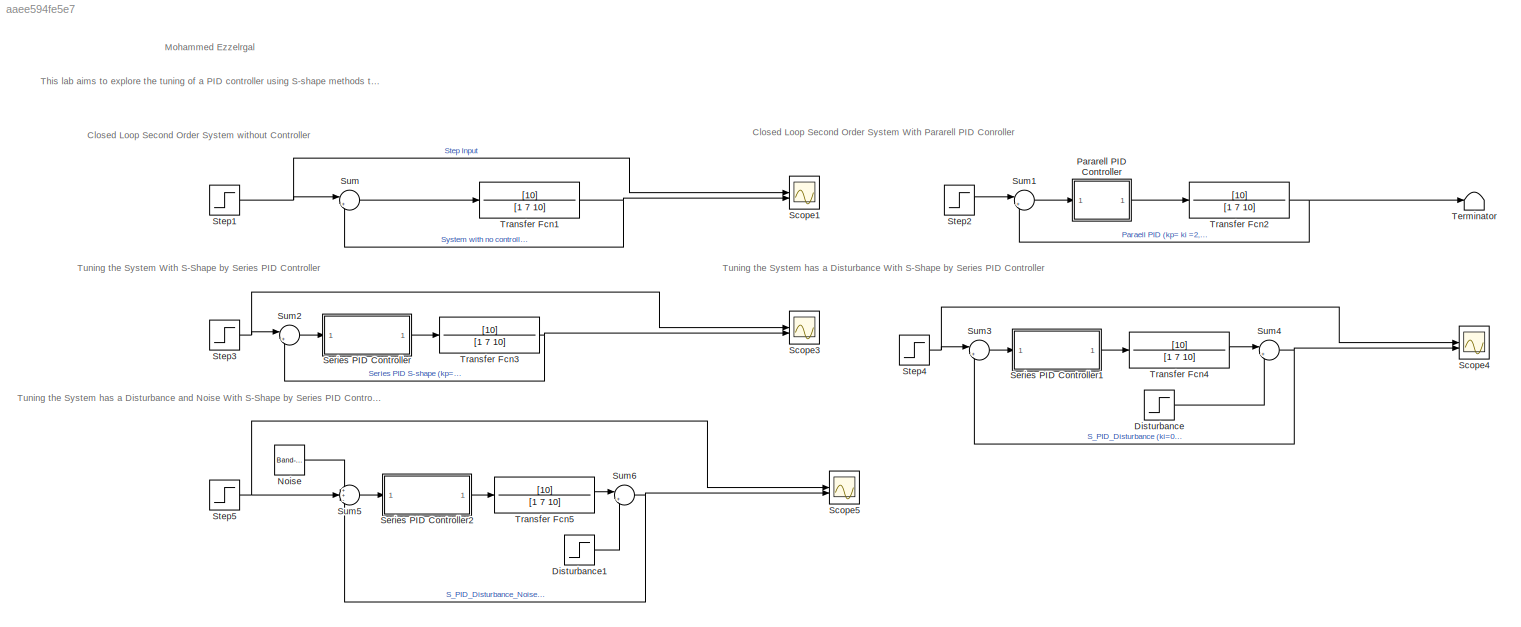
MODEL slx_aaee594fe5e7
KIND model
CONFIG AbsTol = auto
CONFIG EnableMultiTasking = off
CONFIG FixedStep = auto
CONFIG MaxStep = 0.001
CONFIG MinStep = auto
CONFIG RelTol = 1e-3
CONFIG SampleTimeConstraint = Unconstrained
CONFIG SolverName = VariableStepAuto
CONFIG StartTime = 0.0
CONFIG StopTime = 20
BLOCK [Step] Disturbance
  After = 0.5
  SampleTime = 0
  Time = 5
BLOCK [Step] Disturbance1
  After = 0.5
  SampleTime = 0
  Time = 20
BLOCK [Reference] Noise  REF=simulink/Sources/Band-Limited
White Noise
  SourceBlock = simulink/Sources/Band-Limited\nWhite Noise
  SourceType = Band-Limited White Noise.
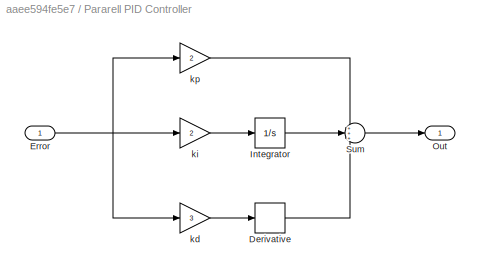
BLOCK [SubSystem] Pararell PID Controller
BLOCK [Derivative] Pararell PID Controller/Derivative
BLOCK [Inport] Pararell PID Controller/Error
BLOCK [Integrator] Pararell PID Controller/Integrator
BLOCK [Outport] Pararell PID Controller/Out
BLOCK [Sum] Pararell PID Controller/Sum
  Inputs = +++
BLOCK [Gain] Pararell PID Controller/kd
  Gain = 3
BLOCK [Gain] Pararell PID Controller/ki
  Gain = 2
BLOCK [Gain] Pararell PID Controller/kp
  Gain = 2
BLOCK [Scope] Scope1
  Floating = off
  NumInputPorts = 2
  ScopeSpecificationString = Simulink.scopes.TimeScopeBlockCfg('CurrentConfiguration', extmgr.ConfigurationSet(extmgr.Configuration('Core','General UI',true),extmgr.Configuration('Core','Source UI',true),extmgr.Configuration('Sources','WiredSimulink',true,'DataLoggingVariableName','ScopeData1'),extmgr.Configuration('Visuals','Time Domain',true,'SerializedDisplays',{struct('MinYLimReal','-0.125','MaxYLimReal','1.125','YLabelRe...<+1415ch>
BLOCK [Scope] Scope3
  Floating = off
  NumInputPorts = 2
  ScopeSpecificationString = Simulink.scopes.TimeScopeBlockCfg('CurrentConfiguration', extmgr.ConfigurationSet(extmgr.Configuration('Core','General UI',true),extmgr.Configuration('Core','Source UI',true),extmgr.Configuration('Sources','WiredSimulink',true,'DataLoggingVariableName','ScopeData3'),extmgr.Configuration('Visuals','Time Domain',true,'SerializedDisplays',{struct('MinYLimReal','-0.12609','MaxYLimReal','1.13477','YLab...<+1438ch>
BLOCK [Scope] Scope4
  Floating = off
  NumInputPorts = 2
  ScopeSpecificationString = Simulink.scopes.TimeScopeBlockCfg('CurrentConfiguration', extmgr.ConfigurationSet(extmgr.Configuration('Core','General UI',true),extmgr.Configuration('Core','Source UI',true),extmgr.Configuration('Sources','WiredSimulink',true,'DataLoggingVariableName','ScopeData4'),extmgr.Configuration('Visuals','Time Domain',true,'SerializedDisplays',{struct('MinYLimReal','-0.125','MaxYLimReal','1.125','YLabelRe...<+1447ch>
BLOCK [Scope] Scope5
  Floating = off
  NumInputPorts = 2
  ScopeSpecificationString = Simulink.scopes.TimeScopeBlockCfg('CurrentConfiguration', extmgr.ConfigurationSet(extmgr.Configuration('Core','General UI',true),extmgr.Configuration('Core','Source UI',true),extmgr.Configuration('Sources','WiredSimulink',true,'DataLoggingVariableName','ScopeData5'),extmgr.Configuration('Visuals','Time Domain',true,'SerializedDisplays',{struct('MinYLimReal','-0.12902','MaxYLimReal','1.1612','YLabe...<+1458ch>
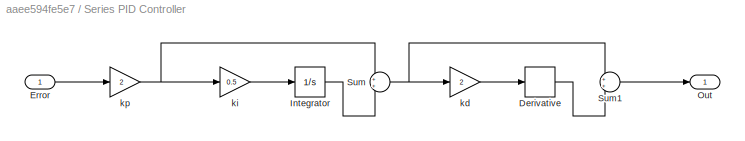
BLOCK [SubSystem] Series PID Controller
BLOCK [Derivative] Series PID Controller/Derivative
BLOCK [Inport] Series PID Controller/Error
BLOCK [Integrator] Series PID Controller/Integrator
BLOCK [Outport] Series PID Controller/Out
BLOCK [Sum] Series PID Controller/Sum
BLOCK [Sum] Series PID Controller/Sum1
BLOCK [Gain] Series PID Controller/kd
  Gain = 2
BLOCK [Gain] Series PID Controller/ki
  Gain = 0.5
BLOCK [Gain] Series PID Controller/kp
  Gain = 2
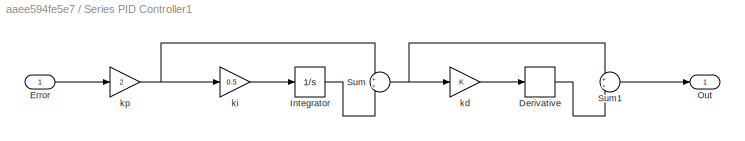
BLOCK [SubSystem] Series PID Controller1
BLOCK [Derivative] Series PID Controller1/Derivative
BLOCK [Inport] Series PID Controller1/Error
BLOCK [Integrator] Series PID Controller1/Integrator
BLOCK [Outport] Series PID Controller1/Out
BLOCK [Sum] Series PID Controller1/Sum
BLOCK [Sum] Series PID Controller1/Sum1
BLOCK [Gain] Series PID Controller1/kd
BLOCK [Gain] Series PID Controller1/ki
  Gain = 0.5
BLOCK [Gain] Series PID Controller1/kp
  Gain = 2
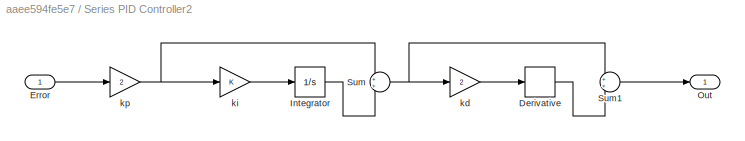
BLOCK [SubSystem] Series PID Controller2
BLOCK [Derivative] Series PID Controller2/Derivative
BLOCK [Inport] Series PID Controller2/Error
BLOCK [Integrator] Series PID Controller2/Integrator
BLOCK [Outport] Series PID Controller2/Out
BLOCK [Sum] Series PID Controller2/Sum
BLOCK [Sum] Series PID Controller2/Sum1
BLOCK [Gain] Series PID Controller2/kd
  Gain = 2
BLOCK [Gain] Series PID Controller2/ki
BLOCK [Gain] Series PID Controller2/kp
  Gain = 2
BLOCK [Step] Step1
  SampleTime = 0
BLOCK [Step] Step2
  SampleTime = 0
BLOCK [Step] Step3
  SampleTime = 0
BLOCK [Step] Step4
  SampleTime = 0
BLOCK [Step] Step5
  SampleTime = 0
BLOCK [Sum] Sum
  Inputs = |+-
BLOCK [Sum] Sum1
  Inputs = |+-
BLOCK [Sum] Sum2
  Inputs = |+-
BLOCK [Sum] Sum3
  Inputs = |+-
BLOCK [Sum] Sum4
  Inputs = |+-
BLOCK [Sum] Sum5
  Inputs = ++-
BLOCK [Sum] Sum6
  Inputs = |+-
BLOCK [Terminator] Terminator
BLOCK [TransferFcn] Transfer Fcn1
  Denominator = [1 7 10]
  Numerator = [10]
BLOCK [TransferFcn] Transfer Fcn2
  Denominator = [1 7 10]
  Numerator = [10]
BLOCK [TransferFcn] Transfer Fcn3
  Denominator = [1 7 10]
  Numerator = [10]
BLOCK [TransferFcn] Transfer Fcn4
  Denominator = [1 7 10]
  Numerator = [10]
BLOCK [TransferFcn] Transfer Fcn5
  Denominator = [1 7 10]
  Numerator = [10]
ANNOTATION (root): Mohammed Ezzelrgal
ANNOTATION (root): This lab aims to explore the tuning of a PID controller using S-shape methods to optimize the response of a given control system.
ANNOTATION (root): Closed Loop Second Order System With Pararell PID Conroller
ANNOTATION (root): Closed Loop Second Order System without Controller
ANNOTATION (root): Tuning the System With S-Shape by Series PID Controller
ANNOTATION (root): Tuning the System has a Disturbance With S-Shape by Series PID Controller
ANNOTATION (root): Tuning the System has a Disturbance and Noise With S-Shape by Series PID Controller
LINE Disturbance1:1 -> Sum6:2
LINE Disturbance:1 -> Sum4:2
LINE Noise:1 -> Sum5:1
LINE Pararell PID Controller/Derivative:1 -> Pararell PID Controller/Sum:3
NET Pararell PID Controller/Error:1 -> Pararell PID Controller/kd:1, Pararell PID Controller/ki:1, Pararell PID Controller/kp:1
LINE Pararell PID Controller/Integrator:1 -> Pararell PID Controller/Sum:2
LINE Pararell PID Controller/Sum:1 -> Pararell PID Controller/Out:1
LINE Pararell PID Controller/kd:1 -> Pararell PID Controller/Derivative:1
LINE Pararell PID Controller/ki:1 -> Pararell PID Controller/Integrator:1
LINE Pararell PID Controller/kp:1 -> Pararell PID Controller/Sum:1
LINE Pararell PID Controller:1 -> Transfer Fcn2:1
LINE Series PID Controller/Derivative:1 -> Series PID Controller/Sum1:2
LINE Series PID Controller/Error:1 -> Series PID Controller/kp:1
LINE Series PID Controller/Integrator:1 -> Series PID Controller/Sum:2
LINE Series PID Controller/Sum1:1 -> Series PID Controller/Out:1
NET Series PID Controller/Sum:1 -> Series PID Controller/Sum1:1, Series PID Controller/kd:1
LINE Series PID Controller/kd:1 -> Series PID Controller/Derivative:1
LINE Series PID Controller/ki:1 -> Series PID Controller/Integrator:1
NET Series PID Controller/kp:1 -> Series PID Controller/Sum:1, Series PID Controller/ki:1
LINE Series PID Controller1/Derivative:1 -> Series PID Controller1/Sum1:2
LINE Series PID Controller1/Error:1 -> Series PID Controller1/kp:1
LINE Series PID Controller1/Integrator:1 -> Series PID Controller1/Sum:2
LINE Series PID Controller1/Sum1:1 -> Series PID Controller1/Out:1
NET Series PID Controller1/Sum:1 -> Series PID Controller1/Sum1:1, Series PID Controller1/kd:1
LINE Series PID Controller1/kd:1 -> Series PID Controller1/Derivative:1
LINE Series PID Controller1/ki:1 -> Series PID Controller1/Integrator:1
NET Series PID Controller1/kp:1 -> Series PID Controller1/Sum:1, Series PID Controller1/ki:1
LINE Series PID Controller1:1 -> Transfer Fcn4:1
LINE Series PID Controller2/Derivative:1 -> Series PID Controller2/Sum1:2
LINE Series PID Controller2/Error:1 -> Series PID Controller2/kp:1
LINE Series PID Controller2/Integrator:1 -> Series PID Controller2/Sum:2
LINE Series PID Controller2/Sum1:1 -> Series PID Controller2/Out:1
NET Series PID Controller2/Sum:1 -> Series PID Controller2/Sum1:1, Series PID Controller2/kd:1
LINE Series PID Controller2/kd:1 -> Series PID Controller2/Derivative:1
LINE Series PID Controller2/ki:1 -> Series PID Controller2/Integrator:1
NET Series PID Controller2/kp:1 -> Series PID Controller2/Sum:1, Series PID Controller2/ki:1
LINE Series PID Controller2:1 -> Transfer Fcn5:1
LINE Series PID Controller:1 -> Transfer Fcn3:1
NET Step1:1 -> Scope1:1, Sum:1
LINE Step2:1 -> Sum1:1
NET Step3:1 -> Scope3:1, Sum2:1
NET Step4:1 -> Scope4:1, Sum3:1
NET Step5:1 -> Scope5:1, Sum5:2
LINE Sum1:1 -> Pararell PID Controller:1
LINE Sum2:1 -> Series PID Controller:1
LINE Sum3:1 -> Series PID Controller1:1
NET Sum4:1 -> Scope4:2, Sum3:2
LINE Sum5:1 -> Series PID Controller2:1
NET Sum6:1 -> Scope5:2, Sum5:3
LINE Sum:1 -> Transfer Fcn1:1
NET Transfer Fcn1:1 -> Scope1:2, Sum:2
NET Transfer Fcn2:1 -> Sum1:2, Terminator:1
NET Transfer Fcn3:1 -> Scope3:2, Sum2:2
LINE Transfer Fcn4:1 -> Sum4:1
LINE Transfer Fcn5:1 -> Sum6:1
note: NET lines group one-source signal fan-out (src -> all destinations, sorted); 1:1 wires keep LINE
